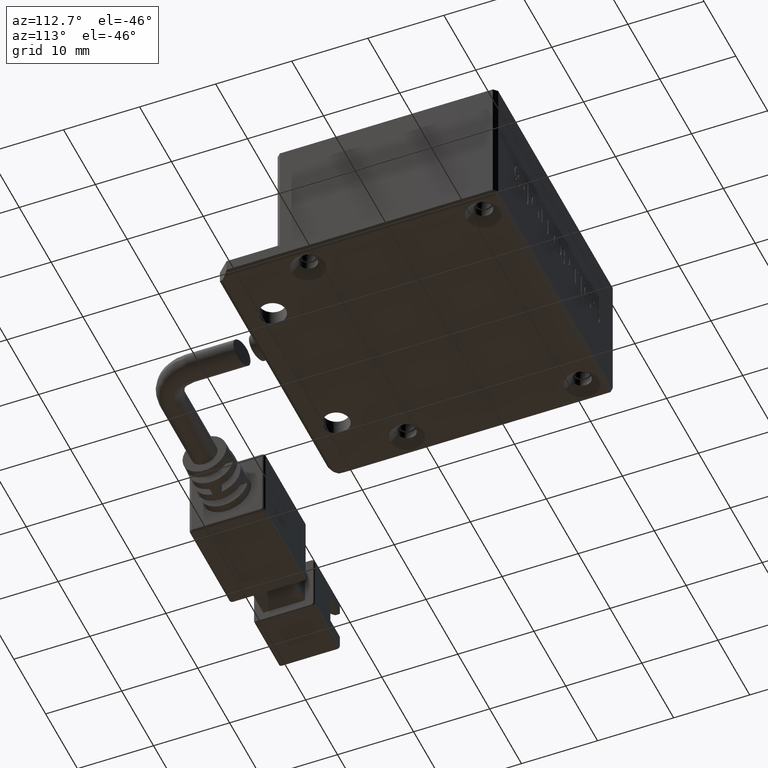
[diagram: clean part render]
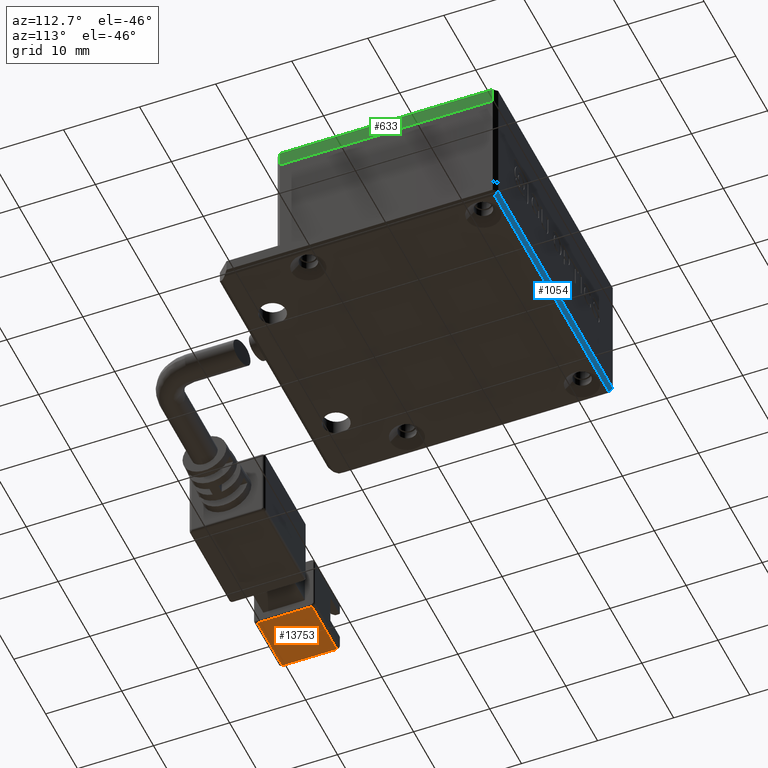
[diagram: same view with three faces highlighted in distinct colors, each labeled with its STEP entity id]
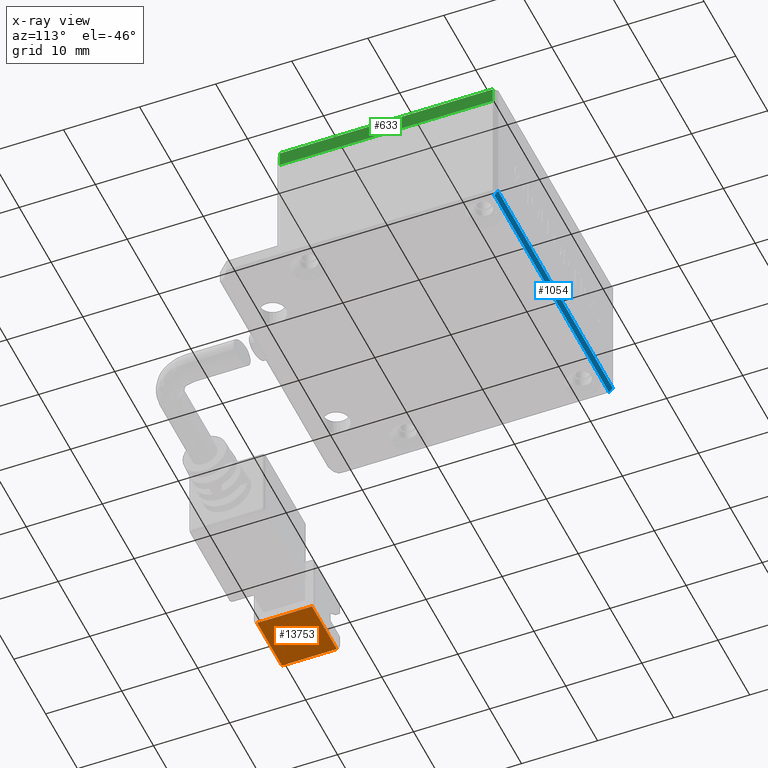
[diagram: x-ray of the same camera — body ghosted, the three highlighted faces saturated]
A machine part, auxiliary view with three faces highlighted in distinct colors.
The next image is the same camera in x-ray (body ghosted, the three faces saturated) — at least one of them is partly hidden behind the body in this view.
Their STEP definitions:

[orange] entity #13753 — the highlighted planar face has unit normal (-0, 0, 1).
#169 = CARTESIAN_POINT ( 'NONE',  ( -46.52940053455518000, -41.65364642993505800, -1.636798335757916300E-011 ) ) ;
#647 = VERTEX_POINT ( 'NONE', #1561 ) ;
#921 = CARTESIAN_POINT ( 'NONE',  ( -46.52940053455518000, -34.45364642993505600, -1.636971808105514000E-011 ) ) ;
#1038 = VECTOR ( 'NONE', #8055, 1000.000000000000000 ) ;
#1249 = FACE_OUTER_BOUND ( 'NONE', #19052, .T. ) ;
#1325 = LINE ( 'NONE', #921, #16899 ) ;
#1561 = CARTESIAN_POINT ( 'NONE',  ( -46.52940053455518000, -34.45364642993505600, -1.636971808105514000E-011 ) ) ;
#1707 = AXIS2_PLACEMENT_3D ( 'NONE', #16887, #7585, #18457 ) ;
#6689 = VECTOR ( 'NONE', #19123, 1000.000000000000000 ) ;
#7506 = ORIENTED_EDGE ( 'NONE', *, *, #9477, .F. ) ;
#7585 = DIRECTION ( 'NONE',  ( -1.336382355046097800E-048, 1.301042606982605300E-016, 1.000000000000000000 ) ) ;
#7717 = CARTESIAN_POINT ( 'NONE',  ( -46.52940053455518000, -34.05364642993505700, -1.636971808105514000E-011 ) ) ;
#8055 = DIRECTION ( 'NONE',  ( 1.000000000000000000, 6.162975822039154700E-033, 5.345529420184391300E-049 ) ) ;
#8201 = VERTEX_POINT ( 'NONE', #17689 ) ;
#9477 = EDGE_CURVE ( 'NONE', #12588, #647, #1325, .T. ) ;
#9898 = CARTESIAN_POINT ( 'NONE',  ( -38.72940053455517500, -34.05364642993505700, -1.636971808105514000E-011 ) ) ;
#10224 = VECTOR ( 'NONE', #17037, 1000.000000000000000 ) ;
#10239 = DIRECTION ( 'NONE',  ( -1.000000000000000000, -6.162975822039154700E-033, -5.345529420184391300E-049 ) ) ;
#10631 = PLANE ( 'NONE',  #1707 ) ;
#12588 = VERTEX_POINT ( 'NONE', #17818 ) ;
#13305 = EDGE_CURVE ( 'NONE', #14594, #8201, #13470, .T. ) ;
#13328 = ORIENTED_EDGE ( 'NONE', *, *, #17484, .F. ) ;
#13470 = LINE ( 'NONE', #169, #1038 ) ;
#13753 = ADVANCED_FACE ( 'NONE', ( #1249 ), #10631, .F. ) ;
#14016 = LINE ( 'NONE', #9898, #6689 ) ;
#14350 = ORIENTED_EDGE ( 'NONE', *, *, #16054, .F. ) ;
#14594 = VERTEX_POINT ( 'NONE', #16044 ) ;
#16044 = CARTESIAN_POINT ( 'NONE',  ( -46.52940053455518000, -41.65364642993505800, -1.636798335757916300E-011 ) ) ;
#16054 = EDGE_CURVE ( 'NONE', #647, #14594, #18007, .T. ) ;
#16887 = CARTESIAN_POINT ( 'NONE',  ( -46.52940053455518000, -34.05364642993505700, -1.636971808105514000E-011 ) ) ;
#16899 = VECTOR ( 'NONE', #10239, 1000.000000000000000 ) ;
#17037 = DIRECTION ( 'NONE',  ( 6.162975822039154700E-033, -1.000000000000000000, 1.301042606982605300E-016 ) ) ;
#17484 = EDGE_CURVE ( 'NONE', #8201, #12588, #14016, .T. ) ;
#17689 = CARTESIAN_POINT ( 'NONE',  ( -38.72940053455517500, -41.65364642993505800, -1.636798335757916300E-011 ) ) ;
#17818 = CARTESIAN_POINT ( 'NONE',  ( -38.72940053455517500, -34.45364642993505600, -1.636971808105514000E-011 ) ) ;
#17965 = ORIENTED_EDGE ( 'NONE', *, *, #13305, .F. ) ;
#18007 = LINE ( 'NONE', #7717, #10224 ) ;
#18457 = DIRECTION ( 'NONE',  ( -6.162975822039154700E-033, 1.000000000000000000, -1.301042606982605300E-016 ) ) ;
#19052 = EDGE_LOOP ( 'NONE', ( #13328, #17965, #14350, #7506 ) ) ;
#19123 = DIRECTION ( 'NONE',  ( -6.162975822039154700E-033, 1.000000000000000000, -1.301042606982605300E-016 ) ) ;

[blue] entity #1054 — the highlighted planar face has unit normal (0, -0.7071, 0.7071).
#21 = VECTOR ( 'NONE', #12177, 1000.000000000000100 ) ;
#1054 = ADVANCED_FACE ( 'NONE', ( #4768 ), #11541, .F. ) ;
#2126 = DIRECTION ( 'NONE',  ( 1.000000000000000000, 1.110223024625158300E-016, -1.094764425253762900E-047 ) ) ;
#2215 = CARTESIAN_POINT ( 'NONE',  ( 18.97059946544483500, 13.44635357006494800, -2.000000000016368700 ) ) ;
#2301 = EDGE_LOOP ( 'NONE', ( #10696, #3317, #15483, #17303 ) ) ;
#2588 = EDGE_CURVE ( 'NONE', #5502, #15551, #15094, .T. ) ;
#2989 = DIRECTION ( 'NONE',  ( -7.850462293418886900E-017, 0.7071067811865474600, 0.7071067811865474600 ) ) ;
#3134 = VECTOR ( 'NONE', #2989, 1000.000000000000100 ) ;
#3156 = VECTOR ( 'NONE', #14664, 1000.000000000000000 ) ;
#3317 = ORIENTED_EDGE ( 'NONE', *, *, #7806, .F. ) ;
#3780 = CARTESIAN_POINT ( 'NONE',  ( -18.02940053455516200, 13.94635357006494100, -1.500000000016368500 ) ) ;
#3800 = DIRECTION ( 'NONE',  ( 7.850462293418886900E-017, -0.7071067811865474600, -0.7071067811865474600 ) ) ;
#4768 = FACE_OUTER_BOUND ( 'NONE', #2301, .T. ) ;
#5502 = VERTEX_POINT ( 'NONE', #9852 ) ;
#6362 = LINE ( 'NONE', #14599, #18303 ) ;
#7066 = VERTEX_POINT ( 'NONE', #7099 ) ;
#7099 = CARTESIAN_POINT ( 'NONE',  ( -17.52940053455516500, 13.44635357006494800, -2.000000000016368700 ) ) ;
#7806 = EDGE_CURVE ( 'NONE', #14104, #15551, #16012, .T. ) ;
#7834 = CARTESIAN_POINT ( 'NONE',  ( 18.47059946544483100, 13.94635357006494800, -1.500000000016368500 ) ) ;
#8286 = LINE ( 'NONE', #9023, #21 ) ;
#9023 = CARTESIAN_POINT ( 'NONE',  ( -17.52940053455517600, 13.44635357006494100, -2.000000000016368700 ) ) ;
#9852 = CARTESIAN_POINT ( 'NONE',  ( -17.52940053455516500, 13.94635357006494100, -1.500000000016368500 ) ) ;
#10545 = EDGE_CURVE ( 'NONE', #5502, #7066, #8286, .T. ) ;
#10696 = ORIENTED_EDGE ( 'NONE', *, *, #2588, .T. ) ;
#11541 = PLANE ( 'NONE',  #13574 ) ;
#12177 = DIRECTION ( 'NONE',  ( 7.850462293418886900E-017, -0.7071067811865474600, -0.7071067811865474600 ) ) ;
#13113 = DIRECTION ( 'NONE',  ( 7.850462293418888200E-017, -0.7071067811865475700, 0.7071067811865475700 ) ) ;
#13458 = EDGE_CURVE ( 'NONE', #7066, #14104, #6362, .T. ) ;
#13574 = AXIS2_PLACEMENT_3D ( 'NONE', #2215, #13113, #3800 ) ;
#14104 = VERTEX_POINT ( 'NONE', #16193 ) ;
#14599 = CARTESIAN_POINT ( 'NONE',  ( 18.97059946544483500, 13.44635357006494800, -2.000000000016368700 ) ) ;
#14664 = DIRECTION ( 'NONE',  ( 1.000000000000000000, 1.110223024625158300E-016, -1.094764425253762900E-047 ) ) ;
#15094 = LINE ( 'NONE', #3780, #3156 ) ;
#15483 = ORIENTED_EDGE ( 'NONE', *, *, #13458, .F. ) ;
#15551 = VERTEX_POINT ( 'NONE', #7834 ) ;
#16012 = LINE ( 'NONE', #18500, #3134 ) ;
#16193 = CARTESIAN_POINT ( 'NONE',  ( 18.47059946544483100, 13.44635357006495500, -2.000000000016368700 ) ) ;
#17303 = ORIENTED_EDGE ( 'NONE', *, *, #10545, .F. ) ;
#18303 = VECTOR ( 'NONE', #2126, 1000.000000000000000 ) ;
#18500 = CARTESIAN_POINT ( 'NONE',  ( 18.47059946544483100, 13.44635357006494800, -2.000000000016368700 ) ) ;

[green] entity #633 — the highlighted planar face has unit normal (-1, -0, 0).
#225 = LINE ( 'NONE', #9075, #8010 ) ;
#431 = CARTESIAN_POINT ( 'NONE',  ( 18.97059946544483100, -14.55364642993506400, 13.99999999998362900 ) ) ;
#633 = ADVANCED_FACE ( 'NONE', ( #16713 ), #10806, .F. ) ;
#1385 = VECTOR ( 'NONE', #5609, 1000.000000000000000 ) ;
#2066 = EDGE_LOOP ( 'NONE', ( #4959, #5440, #9172, #10597 ) ) ;
#2145 = VERTEX_POINT ( 'NONE', #14123 ) ;
#2156 = CARTESIAN_POINT ( 'NONE',  ( 18.97059946544483100, -14.55364642993506600, 15.99999999998363100 ) ) ;
#2517 = EDGE_CURVE ( 'NONE', #16239, #14637, #225, .T. ) ;
#3111 = EDGE_CURVE ( 'NONE', #2145, #11392, #18664, .T. ) ;
#4025 = AXIS2_PLACEMENT_3D ( 'NONE', #18622, #9305, #20181 ) ;
#4959 = ORIENTED_EDGE ( 'NONE', *, *, #2517, .F. ) ;
#5051 = LINE ( 'NONE', #8425, #16508 ) ;
#5440 = ORIENTED_EDGE ( 'NONE', *, *, #16799, .T. ) ;
#5609 = DIRECTION ( 'NONE',  ( -1.196361017915040000E-016, 1.000000000000000000, -0.0000000000000000000 ) ) ;
#8010 = VECTOR ( 'NONE', #20014, 1000.000000000000000 ) ;
#8425 = CARTESIAN_POINT ( 'NONE',  ( 18.97059946544483500, -15.05364642993506900, 13.99999999998362900 ) ) ;
#9075 = CARTESIAN_POINT ( 'NONE',  ( 18.97059946544483100, -14.55364642993506400, 15.99999999998363100 ) ) ;
#9172 = ORIENTED_EDGE ( 'NONE', *, *, #3111, .F. ) ;
#9305 = DIRECTION ( 'NONE',  ( -1.000000000000000000, -1.196361017915040000E-016, 0.0000000000000000000 ) ) ;
#10597 = ORIENTED_EDGE ( 'NONE', *, *, #11431, .F. ) ;
#10806 = PLANE ( 'NONE',  #4025 ) ;
#11292 = DIRECTION ( 'NONE',  ( -0.0000000000000000000, -0.0000000000000000000, -1.000000000000000000 ) ) ;
#11392 = VERTEX_POINT ( 'NONE', #14804 ) ;
#11431 = EDGE_CURVE ( 'NONE', #14637, #2145, #17447, .T. ) ;
#14123 = CARTESIAN_POINT ( 'NONE',  ( 18.97059946544482800, 13.44635357006492300, 15.99999999998363100 ) ) ;
#14637 = VERTEX_POINT ( 'NONE', #2156 ) ;
#14804 = CARTESIAN_POINT ( 'NONE',  ( 18.97059946544482800, 13.44635357006492500, 13.99999999998362900 ) ) ;
#16239 = VERTEX_POINT ( 'NONE', #431 ) ;
#16498 = CARTESIAN_POINT ( 'NONE',  ( 18.97059946544482800, 13.94635357006492300, 15.99999999998363100 ) ) ;
#16508 = VECTOR ( 'NONE', #17760, 1000.000000000000000 ) ;
#16713 = FACE_OUTER_BOUND ( 'NONE', #2066, .T. ) ;
#16799 = EDGE_CURVE ( 'NONE', #16239, #11392, #5051, .T. ) ;
#17447 = LINE ( 'NONE', #16498, #1385 ) ;
#17492 = CARTESIAN_POINT ( 'NONE',  ( 18.97059946544482800, 13.44635357006492300, 15.99999999998363100 ) ) ;
#17760 = DIRECTION ( 'NONE',  ( -0.0000000000000000000, 1.000000000000000000, 0.0000000000000000000 ) ) ;
#18622 = CARTESIAN_POINT ( 'NONE',  ( 18.97059946544482800, 13.94635357006492300, 15.99999999998363100 ) ) ;
#18664 = LINE ( 'NONE', #17492, #19133 ) ;
#19133 = VECTOR ( 'NONE', #11292, 1000.000000000000000 ) ;
#20014 = DIRECTION ( 'NONE',  ( 0.0000000000000000000, 0.0000000000000000000, 1.000000000000000000 ) ) ;
#20181 = DIRECTION ( 'NONE',  ( 1.196361017915040000E-016, -1.000000000000000000, 0.0000000000000000000 ) ) ;